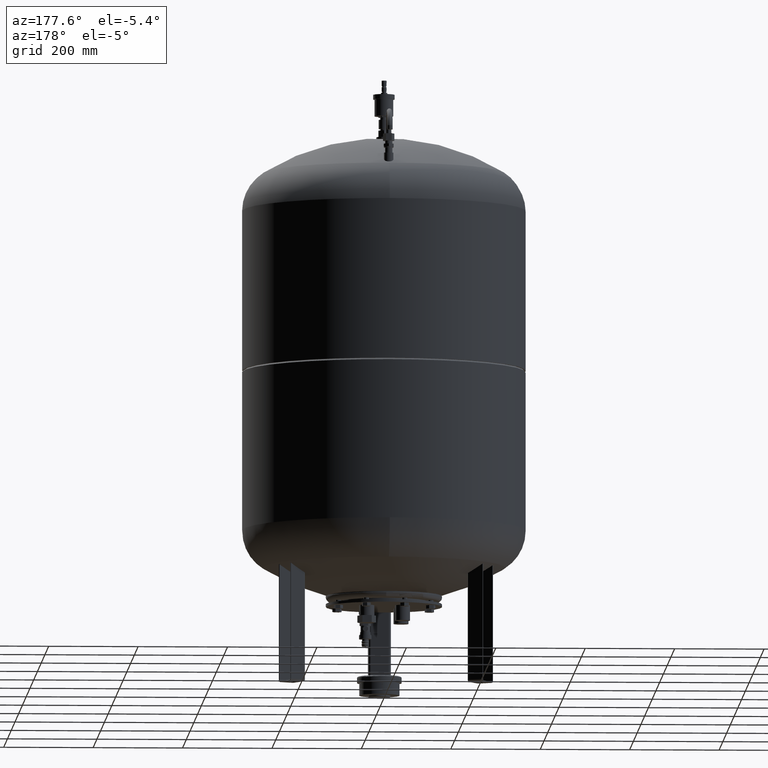
[diagram: clean part render]
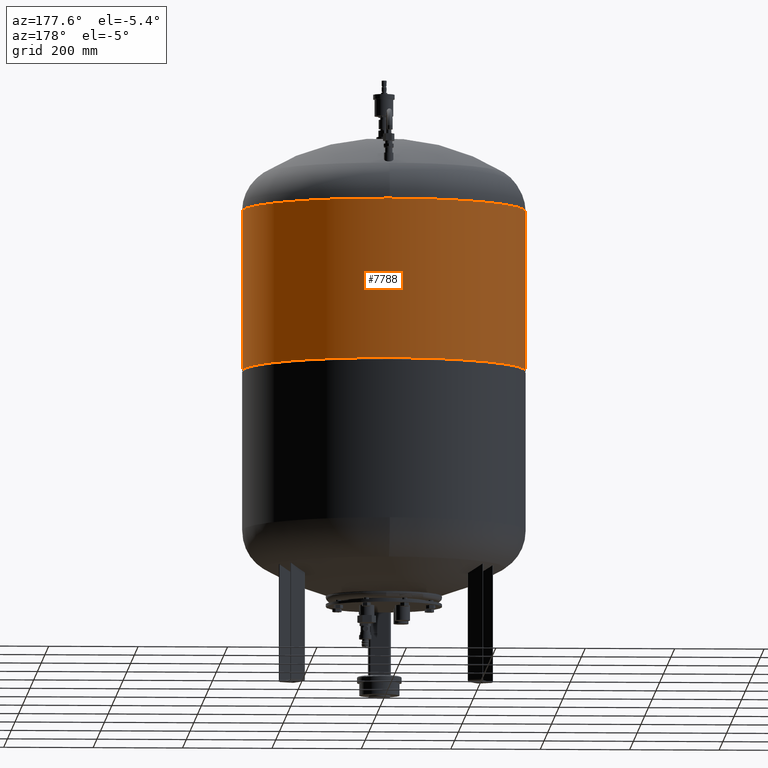
[diagram: same view with one face highlighted and labeled with its STEP entity id]
A machine part, auxiliary view. The second image highlights one B-rep face of the part: STEP entity #7788.
In plain terms, the highlighted cylindrical surface (partial cylindrical patch) has radius 317 mm, axis along (0, 0, 1).
Its self-contained STEP definition (entity closure, byte-faithful):
#7588=CARTESIAN_POINT('',(317.0,0.0,1068.0));
#7589=VERTEX_POINT('',#7588);
#7590=CARTESIAN_POINT('',(316.999999999999940,0.0,710.0));
#7591=VERTEX_POINT('',#7590);
#7592=CARTESIAN_POINT('',(317.0,0.0,1068.0));
#7593=DIRECTION('',(0.0,0.0,-1.0));
#7594=VECTOR('',#7593,358.0);
#7595=LINE('',#7592,#7594);
#7596=EDGE_CURVE('',#7589,#7591,#7595,.T.);
#7598=CARTESIAN_POINT('',(-317.0,-3.882002E-014,1068.0));
#7599=VERTEX_POINT('',#7598);
#7607=CARTESIAN_POINT('',(-317.0,-3.882002E-014,710.0));
#7608=VERTEX_POINT('',#7607);
#7609=CARTESIAN_POINT('',(-317.0,-3.882002E-014,1068.0));
#7610=DIRECTION('',(0.0,0.0,-1.0));
#7611=VECTOR('',#7610,358.0);
#7612=LINE('',#7609,#7611);
#7613=EDGE_CURVE('',#7599,#7608,#7612,.T.);
#7756=CARTESIAN_POINT('',(0.0,0.0,710.0));
#7757=DIRECTION('',(0.0,0.0,1.0));
#7758=DIRECTION('',(1.0,0.0,0.0));
#7759=AXIS2_PLACEMENT_3D('',#7756,#7757,#7758);
#7760=CIRCLE('',#7759,316.999999999999940);
#7761=EDGE_CURVE('',#7591,#7608,#7760,.T.);
#7771=CARTESIAN_POINT('',(8.343982E-015,0.0,889.0));
#7772=DIRECTION('',(4.661443E-017,0.0,1.0));
#7773=DIRECTION('',(1.0,0.0,0.0));
#7774=AXIS2_PLACEMENT_3D('',#7771,#7772,#7773);
#7775=CYLINDRICAL_SURFACE('',#7774,317.0);
#7776=ORIENTED_EDGE('',*,*,#7596,.T.);
#7777=ORIENTED_EDGE('',*,*,#7761,.T.);
#7778=ORIENTED_EDGE('',*,*,#7613,.F.);
#7779=CARTESIAN_POINT('',(1.668796E-014,0.0,1068.0));
#7780=DIRECTION('',(0.0,0.0,1.0));
#7781=DIRECTION('',(1.0,0.0,0.0));
#7782=AXIS2_PLACEMENT_3D('',#7779,#7780,#7781);
#7783=CIRCLE('',#7782,317.0);
#7784=EDGE_CURVE('',#7589,#7599,#7783,.T.);
#7785=ORIENTED_EDGE('',*,*,#7784,.F.);
#7786=EDGE_LOOP('',(#7776,#7777,#7778,#7785));
#7787=FACE_OUTER_BOUND('',#7786,.T.);
#7788=ADVANCED_FACE('',(#7787),#7775,.T.);